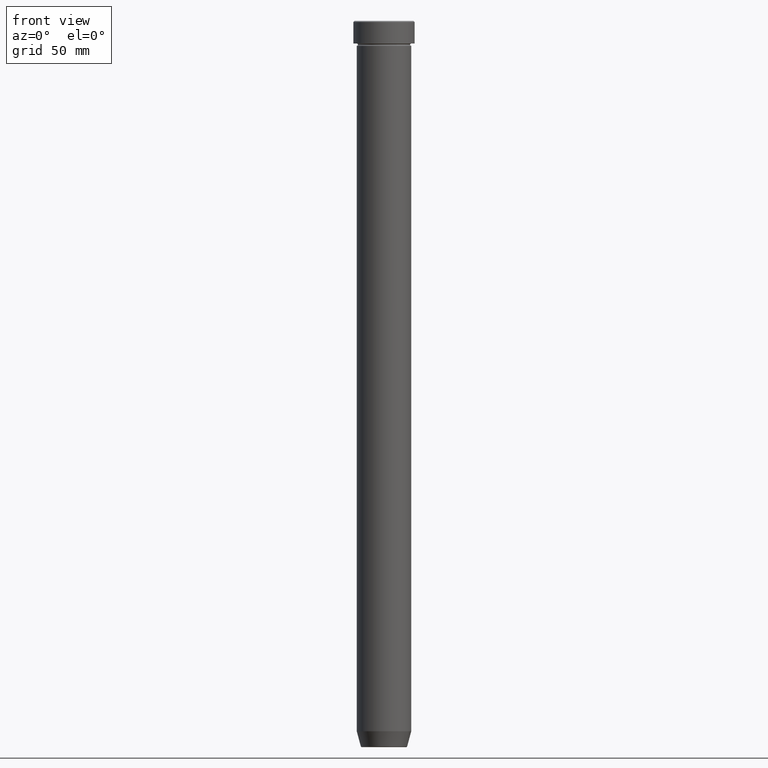
[diagram: clean part render]
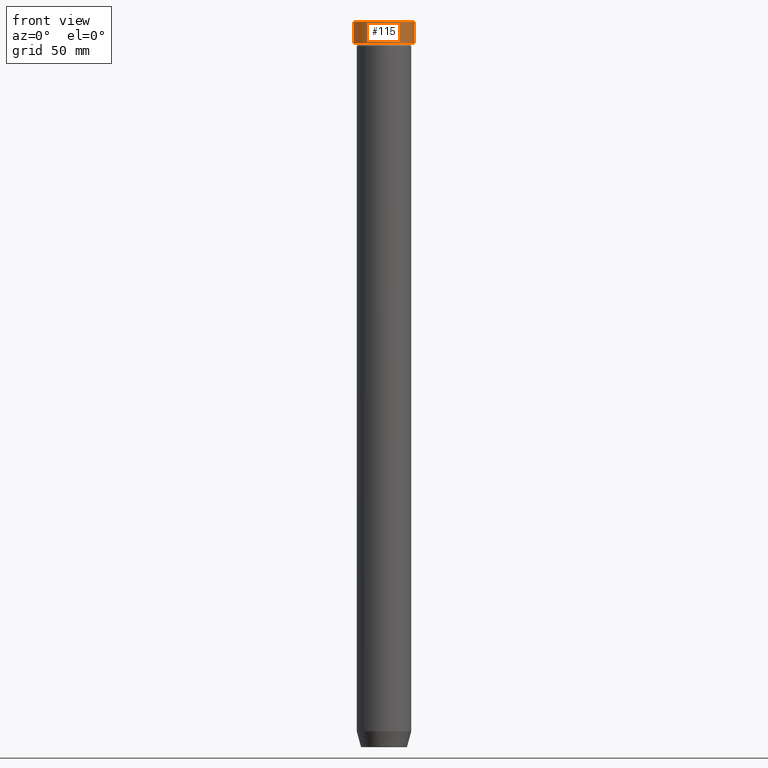
[diagram: same view with one face highlighted and labeled with its STEP entity id]
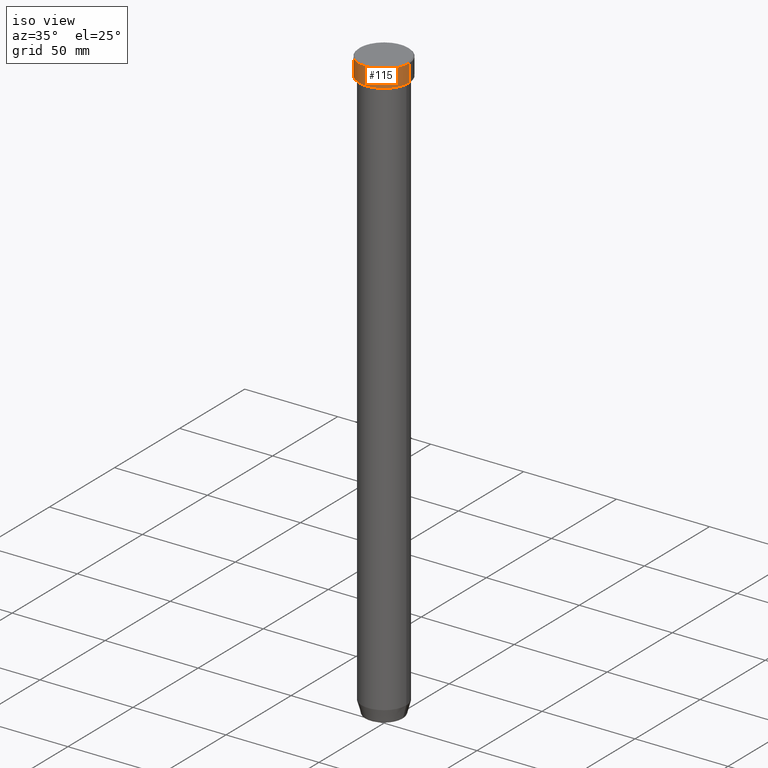
[diagram: same view with one face highlighted and labeled with its STEP entity id]
A machine part, front view. The second image highlights one B-rep face of the part: STEP entity #115.
A second angle (iso view) of the same face is appended — the face is thin or edge-on in the first view.
In plain terms, the highlighted cylindrical surface (edge-blend (fillet) strip) has radius 13.5 mm, axis along (-0, -0, 1).
Its self-contained STEP definition (entity closure, byte-faithful):
#2 = CIRCLE ( 'NONE', #299, 13.50000000000000000 ) ;
#23 = DIRECTION ( 'NONE',  ( -0.000000000000000000, -0.000000000000000000, 1.000000000000000000 ) ) ;
#99 = EDGE_LOOP ( 'NONE', ( #353, #226, #521, #263 ) ) ;
#115 = ADVANCED_FACE ( 'NONE', ( #560 ), #567, .T. ) ;
#170 = VERTEX_POINT ( 'NONE', #266 ) ;
#173 = VECTOR ( 'NONE', #554, 1000.000000000000000 ) ;
#175 = EDGE_CURVE ( 'NONE', #170, #399, #264, .T. ) ;
#192 = DIRECTION ( 'NONE',  ( -0.000000000000000000, -0.000000000000000000, 1.000000000000000000 ) ) ;
#193 = CARTESIAN_POINT ( 'NONE',  ( -13.50000000000000000, 1.653273178848926867E-15, 0.000000000000000000 ) ) ;
#199 = EDGE_CURVE ( 'NONE', #525, #399, #368, .T. ) ;
#226 = ORIENTED_EDGE ( 'NONE', *, *, #288, .T. ) ;
#251 = AXIS2_PLACEMENT_3D ( 'NONE', #312, #496, #581 ) ;
#263 = ORIENTED_EDGE ( 'NONE', *, *, #175, .T. ) ;
#264 = CIRCLE ( 'NONE', #397, 13.50000000000000000 ) ;
#266 = CARTESIAN_POINT ( 'NONE',  ( 13.50000000000000000, 0.000000000000000000, -0.5000000000000091038 ) ) ;
#270 = CARTESIAN_POINT ( 'NONE',  ( 0.000000000000000000, 0.000000000000000000, -0.5000000000000091038 ) ) ;
#283 = LINE ( 'NONE', #508, #373 ) ;
#288 = EDGE_CURVE ( 'NONE', #525, #499, #2, .T. ) ;
#299 = AXIS2_PLACEMENT_3D ( 'NONE', #405, #23, #441 ) ;
#312 = CARTESIAN_POINT ( 'NONE',  ( 0.000000000000000000, 0.000000000000000000, 0.000000000000000000 ) ) ;
#353 = ORIENTED_EDGE ( 'NONE', *, *, #199, .F. ) ;
#359 = CARTESIAN_POINT ( 'NONE',  ( 13.50000000000000000, 0.000000000000000000, -10.00000000000000000 ) ) ;
#368 = LINE ( 'NONE', #193, #173 ) ;
#373 = VECTOR ( 'NONE', #192, 1000.000000000000000 ) ;
#374 = CARTESIAN_POINT ( 'NONE',  ( -13.50000000000000000, 1.653273178848926867E-15, -10.00000000000000000 ) ) ;
#397 = AXIS2_PLACEMENT_3D ( 'NONE', #270, #450, #454 ) ;
#399 = VERTEX_POINT ( 'NONE', #445 ) ;
#405 = CARTESIAN_POINT ( 'NONE',  ( 0.000000000000000000, 0.000000000000000000, -10.00000000000000000 ) ) ;
#441 = DIRECTION ( 'NONE',  ( 1.000000000000000000, 0.000000000000000000, 0.000000000000000000 ) ) ;
#445 = CARTESIAN_POINT ( 'NONE',  ( -13.50000000000000000, 1.653273178848926867E-15, -0.5000000000000091038 ) ) ;
#450 = DIRECTION ( 'NONE',  ( 0.000000000000000000, 0.000000000000000000, -1.000000000000000000 ) ) ;
#454 = DIRECTION ( 'NONE',  ( 1.000000000000000000, 0.000000000000000000, 0.000000000000000000 ) ) ;
#496 = DIRECTION ( 'NONE',  ( -0.000000000000000000, -0.000000000000000000, 1.000000000000000000 ) ) ;
#499 = VERTEX_POINT ( 'NONE', #359 ) ;
#508 = CARTESIAN_POINT ( 'NONE',  ( 13.50000000000000000, 0.000000000000000000, 0.000000000000000000 ) ) ;
#521 = ORIENTED_EDGE ( 'NONE', *, *, #557, .T. ) ;
#525 = VERTEX_POINT ( 'NONE', #374 ) ;
#554 = DIRECTION ( 'NONE',  ( -0.000000000000000000, -0.000000000000000000, 1.000000000000000000 ) ) ;
#557 = EDGE_CURVE ( 'NONE', #499, #170, #283, .T. ) ;
#560 = FACE_OUTER_BOUND ( 'NONE', #99, .T. ) ;
#567 = CYLINDRICAL_SURFACE ( 'NONE', #251, 13.50000000000000000 ) ;
#581 = DIRECTION ( 'NONE',  ( 1.000000000000000000, 0.000000000000000000, 0.000000000000000000 ) ) ;